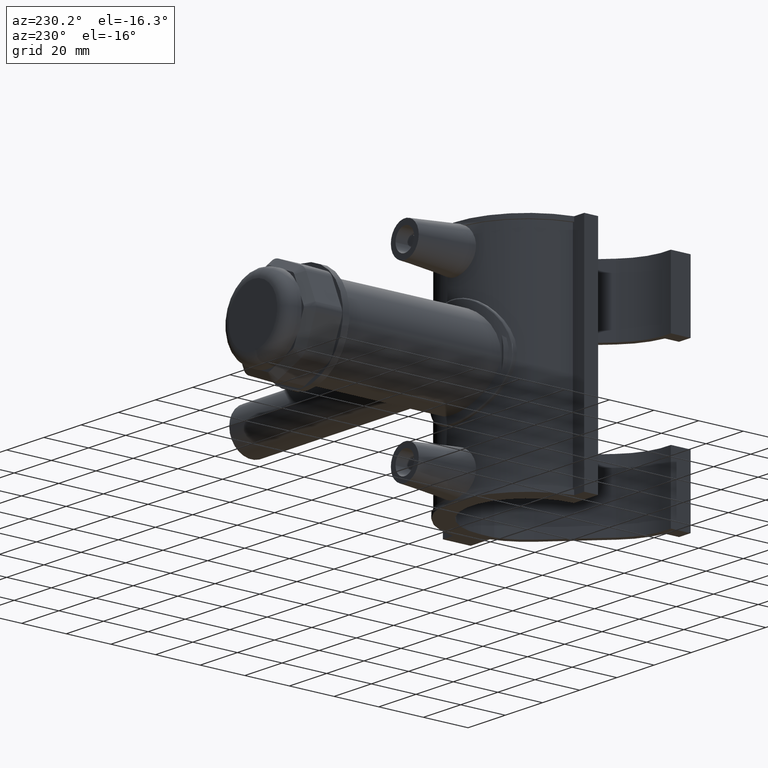
[diagram: clean part render]
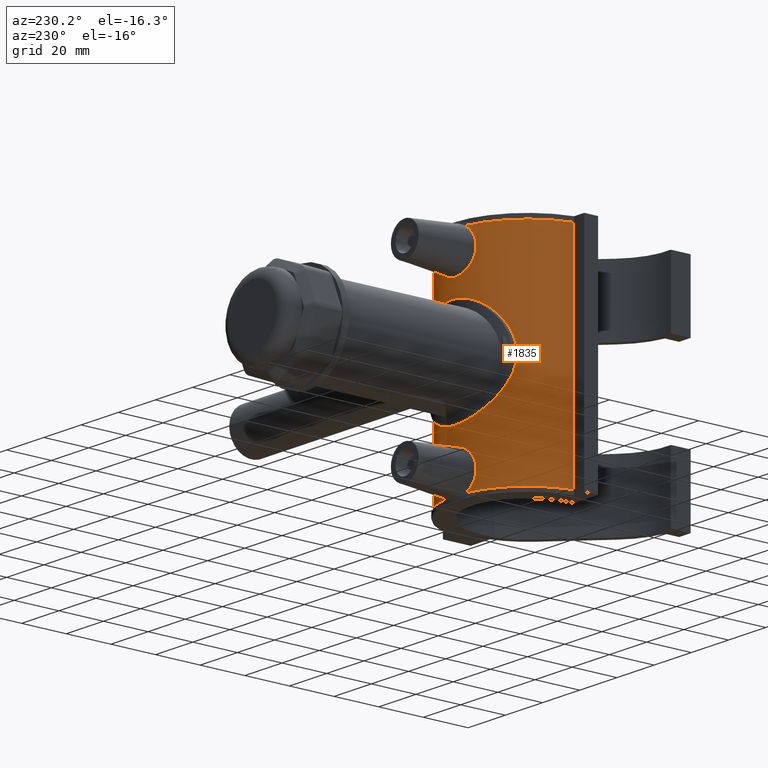
[diagram: same view with one face highlighted and labeled with its STEP entity id]
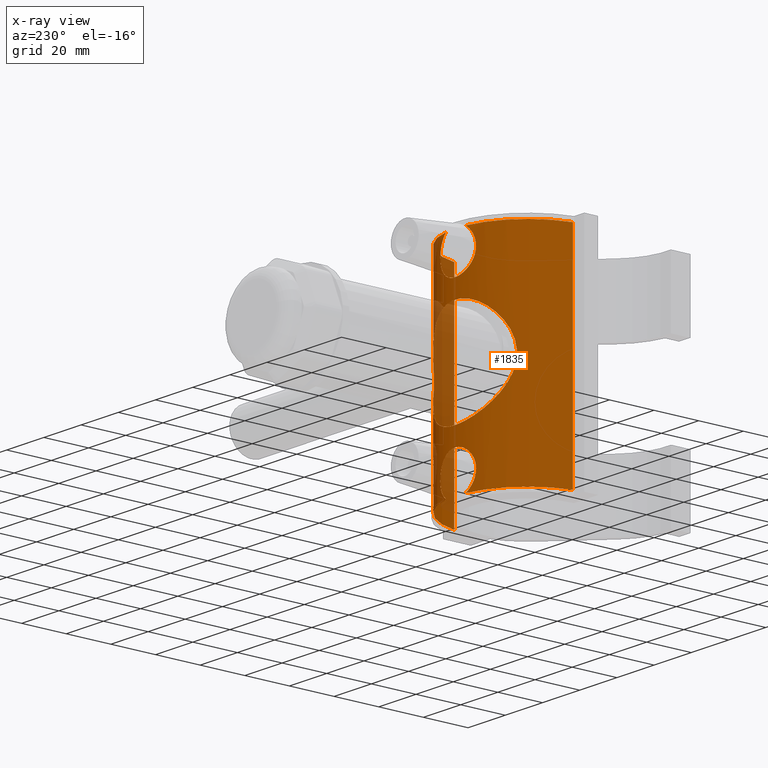
[diagram: x-ray of the same camera — body ghosted, the highlighted face saturated]
A machine part, auxiliary view. The second image highlights one B-rep face of the part: STEP entity #1835.
The next image is the same camera in x-ray: the body ghosted, the highlighted face saturated — about 12% of this face is hidden behind the body in this view.
In plain terms, the highlighted cylindrical surface (partial cylindrical patch) has radius 32.5 mm, axis along (0, 0, 1).
Its self-contained STEP definition (entity closure, byte-faithful):
#100=LINE('',#3353,#244);
#111=LINE('',#3438,#255);
#244=VECTOR('',#2367,96.);
#255=VECTOR('',#2400,96.);
#353=FACE_BOUND('',#627,.T.);
#359=B_SPLINE_CURVE_WITH_KNOTS('',3,(#2726,#2727,#2728,#2729,#2730,#2731,
#2732,#2733,#2734,#2735,#2736,#2737,#2738,#2739),.UNSPECIFIED.,.F.,.F.,
(4,2,2,2,2,2,4),(1.75979192111123,1.79772008593304,2.13795833069933,2.47819657546562,
2.8184348202319,3.15867306499819,3.19660122982),.UNSPECIFIED.);
#369=B_SPLINE_CURVE_WITH_KNOTS('',3,(#3130,#3131,#3132,#3133,#3134,#3135,
#3136,#3137,#3138,#3139,#3140,#3141,#3142,#3143,#3144,#3145,#3146,#3147,
#3148,#3149,#3150,#3151,#3152,#3153,#3154,#3155,#3156,#3157,#3158,#3159,
#3160,#3161,#3162,#3163,#3164,#3165,#3166,#3167,#3168,#3169,#3170,#3171,
#3172,#3173,#3174,#3175,#3176,#3177,#3178,#3179,#3180,#3181,#3182,#3183,
#3184,#3185,#3186,#3187,#3188,#3189,#3190,#3191),.UNSPECIFIED.,.F.,.F.,
(4,2,2,2,2,2,2,2,2,2,2,2,2,2,2,2,2,2,2,2,2,2,2,2,2,2,2,2,2,2,4),(0.642204231778051,
0.892655156686813,1.33898273503022,1.78531031337363,2.22563767284297,2.66596503231231,
3.10629239178164,3.54661975125098,3.98694711072032,4.42727447018966,4.867601829659,
5.30792918912834,5.75425676747175,6.20058434581515,6.64691192415856,7.09323950250197,
7.53956708084537,7.98589465918878,8.43222223753219,8.87854981587559,9.31887717534493,
9.75920453481427,10.1995318942836,10.639859253753,11.0801866132223,11.5205139726916,
11.960841332161,12.4011686916303,12.8474962699737,13.2938238483171,13.5442747732259),
 .UNSPECIFIED.);
#372=B_SPLINE_CURVE_WITH_KNOTS('',3,(#3365,#3366,#3367,#3368,#3369,#3370,
#3371,#3372,#3373,#3374,#3375,#3376,#3377,#3378,#3379,#3380,#3381,#3382,
#3383,#3384,#3385,#3386,#3387,#3388),.UNSPECIFIED.,.F.,.F.,(4,2,2,2,2,2,
2,2,2,2,2,4),(0.,0.362047899468712,0.724095798937425,1.08486680070372,1.44563780247002,
1.80640880423631,2.16717980600261,2.52922770547132,2.89127560494004,3.25332350440875,
3.61537140387746,3.81859572748109),.UNSPECIFIED.);
#373=B_SPLINE_CURVE_WITH_KNOTS('',3,(#3389,#3390,#3391,#3392,#3393,#3394,
#3395,#3396),.UNSPECIFIED.,.F.,.F.,(4,2,2,4),(4.85523108733587,5.05845541094265,
5.42050331041136,5.78255120988007),.UNSPECIFIED.);
#375=B_SPLINE_CURVE_WITH_KNOTS('',3,(#3441,#3442,#3443,#3444,#3445,#3446,
#3447,#3448),.UNSPECIFIED.,.F.,.F.,(4,2,2,4),(2.89127560494004,3.25332350440875,
3.61537140387746,3.81859572748109),.UNSPECIFIED.);
#376=B_SPLINE_CURVE_WITH_KNOTS('',3,(#3449,#3450,#3451,#3452,#3453,#3454,
#3455,#3456,#3457,#3458,#3459,#3460,#3461,#3462,#3463,#3464,#3465,#3466,
#3467,#3468,#3469,#3470,#3471,#3472,#3473),.UNSPECIFIED.,.F.,.F.,(4,2,2,
3,2,2,2,2,2,2,2,4),(4.85523108733587,5.05845541094265,5.42050331041136,
5.78255120988007,6.14459910934878,6.5066470088175,6.86741801058379,7.22818901235009,
7.58896001411639,7.94973101588268,8.3117789153514,8.67382681482011),
 .UNSPECIFIED.);
#401=CYLINDRICAL_SURFACE('',#2020,32.5);
#492=FACE_OUTER_BOUND('',#626,.T.);
#626=EDGE_LOOP('',(#1532,#1533,#1534,#1535,#1536,#1537,#1538,#1539,#1540,
#1541));
#627=EDGE_LOOP('',(#1542,#1543));
#698=CIRCLE('',#1975,32.5);
#699=CIRCLE('',#1977,32.5);
#704=CIRCLE('',#1986,32.5);
#705=CIRCLE('',#1988,32.5);
#742=VERTEX_POINT('',#2718);
#743=VERTEX_POINT('',#2725);
#822=VERTEX_POINT('',#3315);
#824=VERTEX_POINT('',#3321);
#825=VERTEX_POINT('',#3325);
#827=VERTEX_POINT('',#3330);
#831=VERTEX_POINT('',#3352);
#836=VERTEX_POINT('',#3364);
#839=VERTEX_POINT('',#3401);
#840=VERTEX_POINT('',#3408);
#842=VERTEX_POINT('',#3413);
#847=VERTEX_POINT('',#3440);
#916=EDGE_CURVE('',#743,#742,#359,.T.);
#1039=EDGE_CURVE('',#742,#743,#369,.T.);
#1044=EDGE_CURVE('',#822,#824,#698,.T.);
#1046=EDGE_CURVE('',#827,#825,#699,.T.);
#1053=EDGE_CURVE('',#831,#827,#100,.T.);
#1059=EDGE_CURVE('',#836,#822,#372,.T.);
#1060=EDGE_CURVE('',#825,#836,#373,.T.);
#1064=EDGE_CURVE('',#839,#831,#704,.T.);
#1066=EDGE_CURVE('',#842,#840,#705,.T.);
#1075=EDGE_CURVE('',#842,#824,#111,.T.);
#1076=EDGE_CURVE('',#847,#839,#375,.T.);
#1077=EDGE_CURVE('',#840,#847,#376,.T.);
#1532=ORIENTED_EDGE('',*,*,#1044,.T.);
#1533=ORIENTED_EDGE('',*,*,#1075,.F.);
#1534=ORIENTED_EDGE('',*,*,#1066,.T.);
#1535=ORIENTED_EDGE('',*,*,#1077,.T.);
#1536=ORIENTED_EDGE('',*,*,#1076,.T.);
#1537=ORIENTED_EDGE('',*,*,#1064,.T.);
#1538=ORIENTED_EDGE('',*,*,#1053,.T.);
#1539=ORIENTED_EDGE('',*,*,#1046,.T.);
#1540=ORIENTED_EDGE('',*,*,#1060,.T.);
#1541=ORIENTED_EDGE('',*,*,#1059,.T.);
#1542=ORIENTED_EDGE('',*,*,#916,.T.);
#1543=ORIENTED_EDGE('',*,*,#1039,.T.);
#1835=ADVANCED_FACE('',(#492,#353),#401,.T.);
#1975=AXIS2_PLACEMENT_3D('',#3323,#2350,#2351);
#1977=AXIS2_PLACEMENT_3D('',#3331,#2354,#2355);
#1986=AXIS2_PLACEMENT_3D('',#3406,#2381,#2382);
#1988=AXIS2_PLACEMENT_3D('',#3414,#2385,#2386);
#2020=AXIS2_PLACEMENT_3D('',#3529,#2467,#2468);
#2350=DIRECTION('center_axis',(0.,0.,1.));
#2351=DIRECTION('ref_axis',(1.,0.,0.));
#2354=DIRECTION('center_axis',(0.,0.,1.));
#2355=DIRECTION('ref_axis',(1.,0.,0.));
#2367=DIRECTION('',(0.,0.,-1.));
#2381=DIRECTION('center_axis',(0.,0.,-1.));
#2382=DIRECTION('ref_axis',(1.,0.,0.));
#2385=DIRECTION('center_axis',(0.,0.,-1.));
#2386=DIRECTION('ref_axis',(1.,0.,0.));
#2400=DIRECTION('',(0.,0.,-1.));
#2467=DIRECTION('center_axis',(0.,0.,1.));
#2468=DIRECTION('ref_axis',(1.,0.,0.));
#2718=CARTESIAN_POINT('',(21.5740129761844,24.3066238794407,6.38842422159642));
#2725=CARTESIAN_POINT('',(21.5740129761844,24.3066238794407,-6.38842422159642));
#2726=CARTESIAN_POINT('Ctrl Pts',(21.5740129666221,24.306623881486,-6.38842421095202));
#2727=CARTESIAN_POINT('Ctrl Pts',(21.6475026356788,24.2413961032115,-6.30987247188935));
#2728=CARTESIAN_POINT('Ctrl Pts',(21.7198167566256,24.1766156654269,-6.22941294073846));
#2729=CARTESIAN_POINT('Ctrl Pts',(22.4287680825163,23.5359191850374,-5.40728510045754));
#2730=CARTESIAN_POINT('Ctrl Pts',(22.9908436542987,22.9773360077883,-4.45879956090321));
#2731=CARTESIAN_POINT('Ctrl Pts',(23.7354424046721,22.2073316477124,-2.32229686715848));
#2732=CARTESIAN_POINT('Ctrl Pts',(23.9217474278114,22.,-1.13412748255429));
#2733=CARTESIAN_POINT('Ctrl Pts',(23.9217474278114,22.,1.13412748255429));
#2734=CARTESIAN_POINT('Ctrl Pts',(23.7354424046721,22.2073316477124,2.32229686715848));
#2735=CARTESIAN_POINT('Ctrl Pts',(22.9908436542987,22.9773360077883,4.45879956090322));
#2736=CARTESIAN_POINT('Ctrl Pts',(22.4287680825163,23.5359191850374,5.40728510045754));
#2737=CARTESIAN_POINT('Ctrl Pts',(21.7198167566256,24.1766156654269,6.22941294073846));
#2738=CARTESIAN_POINT('Ctrl Pts',(21.6475026356788,24.2413961032115,6.30987247188935));
#2739=CARTESIAN_POINT('Ctrl Pts',(21.5740129666221,24.306623881486,6.38842421095202));
#3130=CARTESIAN_POINT('Ctrl Pts',(21.5740129761844,24.3066238729987,6.3884242269458));
#3131=CARTESIAN_POINT('Ctrl Pts',(21.3349312676024,24.5188274233669,7.19581454732575));
#3132=CARTESIAN_POINT('Ctrl Pts',(21.0510824744804,24.7644883937493,7.98741953372431));
#3133=CARTESIAN_POINT('Ctrl Pts',(20.147164322922,25.512874705654,10.1269630174168));
#3134=CARTESIAN_POINT('Ctrl Pts',(19.4359067364272,26.0669095433927,11.4281429797974));
#3135=CARTESIAN_POINT('Ctrl Pts',(17.8064018001484,27.2060709895802,13.8307258560493));
#3136=CARTESIAN_POINT('Ctrl Pts',(16.8876812187161,27.7905307185321,14.9321239346785));
#3137=CARTESIAN_POINT('Ctrl Pts',(14.945268732686,28.881009975497,16.8745364207086));
#3138=CARTESIAN_POINT('Ctrl Pts',(13.851062690891,29.4295707864864,17.7907025978032));
#3139=CARTESIAN_POINT('Ctrl Pts',(11.4478930364804,30.4449884110935,19.4243862655128));
#3140=CARTESIAN_POINT('Ctrl Pts',(10.1387631948868,30.9113074756575,20.1419934198875));
#3141=CARTESIAN_POINT('Ctrl Pts',(7.37882860695121,31.6836921446332,21.308386282405));
#3142=CARTESIAN_POINT('Ctrl Pts',(5.92503264948649,31.9901452901852,21.7581366019244));
#3143=CARTESIAN_POINT('Ctrl Pts',(2.96953831224904,32.3984143101556,22.3540681424165));
#3144=CARTESIAN_POINT('Ctrl Pts',(1.4677578648978,32.5,22.5));
#3145=CARTESIAN_POINT('Ctrl Pts',(-1.4677578648978,32.5,22.5));
#3146=CARTESIAN_POINT('Ctrl Pts',(-2.96953831224903,32.3984143101556,22.3540681424165));
#3147=CARTESIAN_POINT('Ctrl Pts',(-5.92503264948648,31.9901452901852,21.7581366019244));
#3148=CARTESIAN_POINT('Ctrl Pts',(-7.37882860695121,31.6836921446332,21.308386282405));
#3149=CARTESIAN_POINT('Ctrl Pts',(-10.1387631948868,30.9113074756575,20.1419934198875));
#3150=CARTESIAN_POINT('Ctrl Pts',(-11.4478930364804,30.4449884110935,19.4243862655128));
#3151=CARTESIAN_POINT('Ctrl Pts',(-13.851062690891,29.4295707864864,17.7907025978032));
#3152=CARTESIAN_POINT('Ctrl Pts',(-14.945268732686,28.881009975497,16.8745364207086));
#3153=CARTESIAN_POINT('Ctrl Pts',(-16.8876812187161,27.7905307185321,14.9321239346785));
#3154=CARTESIAN_POINT('Ctrl Pts',(-17.8064018001484,27.2060709895802,13.8307258560493));
#3155=CARTESIAN_POINT('Ctrl Pts',(-19.4359067364272,26.0669095433927,11.4281429797974));
#3156=CARTESIAN_POINT('Ctrl Pts',(-20.147164322922,25.512874705654,10.1269630174168));
#3157=CARTESIAN_POINT('Ctrl Pts',(-21.3051897147005,24.5541038804958,7.38595634921514));
#3158=CARTESIAN_POINT('Ctrl Pts',(-21.7529613714861,24.1500335136266,5.94322521860863));
#3159=CARTESIAN_POINT('Ctrl Pts',(-22.3505515771082,23.5980569779647,2.99434411500661));
#3160=CARTESIAN_POINT('Ctrl Pts',(-22.5,23.4520787991172,1.48775859447802));
#3161=CARTESIAN_POINT('Ctrl Pts',(-22.5,23.4520787991172,-1.48775859447802));
#3162=CARTESIAN_POINT('Ctrl Pts',(-22.3505515771082,23.5980569779647,-2.99434411500662));
#3163=CARTESIAN_POINT('Ctrl Pts',(-21.7529613714861,24.1500335136266,-5.94322521860863));
#3164=CARTESIAN_POINT('Ctrl Pts',(-21.3051897147005,24.5541038804958,-7.38595634921514));
#3165=CARTESIAN_POINT('Ctrl Pts',(-20.147164322922,25.512874705654,-10.1269630174168));
#3166=CARTESIAN_POINT('Ctrl Pts',(-19.4359067364272,26.0669095433927,-11.4281429797974));
#3167=CARTESIAN_POINT('Ctrl Pts',(-17.8064018001484,27.2060709895802,-13.8307258560493));
#3168=CARTESIAN_POINT('Ctrl Pts',(-16.8876812187161,27.7905307185321,-14.9321239346785));
#3169=CARTESIAN_POINT('Ctrl Pts',(-14.945268732686,28.8810099754969,-16.8745364207086));
#3170=CARTESIAN_POINT('Ctrl Pts',(-13.851062690891,29.4295707864864,-17.7907025978032));
#3171=CARTESIAN_POINT('Ctrl Pts',(-11.4478930364804,30.4449884110935,-19.4243862655128));
#3172=CARTESIAN_POINT('Ctrl Pts',(-10.1387631948868,30.9113074756575,-20.1419934198875));
#3173=CARTESIAN_POINT('Ctrl Pts',(-7.37882860695121,31.6836921446332,-21.308386282405));
#3174=CARTESIAN_POINT('Ctrl Pts',(-5.92503264948649,31.9901452901852,-21.7581366019244));
#3175=CARTESIAN_POINT('Ctrl Pts',(-2.96953831224904,32.3984143101556,-22.3540681424165));
#3176=CARTESIAN_POINT('Ctrl Pts',(-1.4677578648978,32.5,-22.5));
#3177=CARTESIAN_POINT('Ctrl Pts',(1.46775786489779,32.5,-22.5));
#3178=CARTESIAN_POINT('Ctrl Pts',(2.96953831224903,32.3984143101556,-22.3540681424165));
#3179=CARTESIAN_POINT('Ctrl Pts',(5.92503264948648,31.9901452901852,-21.7581366019244));
#3180=CARTESIAN_POINT('Ctrl Pts',(7.37882860695121,31.6836921446332,-21.308386282405));
#3181=CARTESIAN_POINT('Ctrl Pts',(10.1387631948868,30.9113074756575,-20.1419934198875));
#3182=CARTESIAN_POINT('Ctrl Pts',(11.4478930364804,30.4449884110935,-19.4243862655128));
#3183=CARTESIAN_POINT('Ctrl Pts',(13.851062690891,29.4295707864864,-17.7907025978032));
#3184=CARTESIAN_POINT('Ctrl Pts',(14.945268732686,28.881009975497,-16.8745364207086));
#3185=CARTESIAN_POINT('Ctrl Pts',(16.8876812187161,27.7905307185321,-14.9321239346785));
#3186=CARTESIAN_POINT('Ctrl Pts',(17.8064018001484,27.2060709895802,-13.8307258560493));
#3187=CARTESIAN_POINT('Ctrl Pts',(19.4359067364272,26.0669095433927,-11.4281429797974));
#3188=CARTESIAN_POINT('Ctrl Pts',(20.147164322922,25.512874705654,-10.1269630174168));
#3189=CARTESIAN_POINT('Ctrl Pts',(21.0510824744804,24.7644883937493,-7.98741953372431));
#3190=CARTESIAN_POINT('Ctrl Pts',(21.3349312676024,24.5188274233669,-7.19581454732574));
#3191=CARTESIAN_POINT('Ctrl Pts',(21.5740129761844,24.3066238729987,-6.3884242269458));
#3315=CARTESIAN_POINT('',(-5.13117896250066,32.0923823119255,-48.));
#3321=CARTESIAN_POINT('',(-31.8933770554327,6.25,-48.));
#3323=CARTESIAN_POINT('Origin',(0.,0.,-48.));
#3325=CARTESIAN_POINT('',(5.13117896250066,32.0923823119255,-48.));
#3330=CARTESIAN_POINT('',(31.8933770554327,6.25,-48.));
#3331=CARTESIAN_POINT('Origin',(0.,0.,-48.));
#3352=CARTESIAN_POINT('',(31.8933770554327,6.25,48.));
#3353=CARTESIAN_POINT('',(31.8933770554327,6.25,0.));
#3364=CARTESIAN_POINT('',(9.59524244594183,31.0512692559193,-40.));
#3365=CARTESIAN_POINT('Ctrl Pts',(9.59524244594183,31.0512692559193,-40.));
#3366=CARTESIAN_POINT('Ctrl Pts',(9.59524244594183,31.0512692559193,-38.7931736684376));
#3367=CARTESIAN_POINT('Ctrl Pts',(9.3470231898562,31.1311666751305,-37.5134816777897));
#3368=CARTESIAN_POINT('Ctrl Pts',(8.35380569471185,31.412263489831,-35.1737633631997));
#3369=CARTESIAN_POINT('Ctrl Pts',(7.60928976109968,31.6086786532308,-34.1129600502947));
#3370=CARTESIAN_POINT('Ctrl Pts',(5.90699332981886,31.9704853933175,-32.446684726768));
#3371=CARTESIAN_POINT('Ctrl Pts',(4.83429941664471,32.1602272677186,-31.7260732041943));
#3372=CARTESIAN_POINT('Ctrl Pts',(2.48234605122766,32.4266653583976,-30.76831513355));
#3373=CARTESIAN_POINT('Ctrl Pts',(1.20257000588766,32.5,-30.5315050706667));
#3374=CARTESIAN_POINT('Ctrl Pts',(-1.20257000588765,32.5,-30.5315050706667));
#3375=CARTESIAN_POINT('Ctrl Pts',(-2.48234605122766,32.4266653583976,-30.76831513355));
#3376=CARTESIAN_POINT('Ctrl Pts',(-4.83429941664471,32.1602272677186,-31.7260732041943));
#3377=CARTESIAN_POINT('Ctrl Pts',(-5.90699332981886,31.9704853933175,-32.446684726768));
#3378=CARTESIAN_POINT('Ctrl Pts',(-7.60928976109968,31.6086786532308,-34.1129600502947));
#3379=CARTESIAN_POINT('Ctrl Pts',(-8.35380569471185,31.412263489831,-35.1737633631997));
#3380=CARTESIAN_POINT('Ctrl Pts',(-9.3470231898562,31.1311666751305,-37.5134816777897));
#3381=CARTESIAN_POINT('Ctrl Pts',(-9.59524244594183,31.0512692559193,-38.7931736684376));
#3382=CARTESIAN_POINT('Ctrl Pts',(-9.59524244594183,31.0512692559193,-41.2068263315624));
#3383=CARTESIAN_POINT('Ctrl Pts',(-9.3470231898562,31.1311666751305,-42.4865183222104));
#3384=CARTESIAN_POINT('Ctrl Pts',(-8.35380569471185,31.412263489831,-44.8262366368003));
#3385=CARTESIAN_POINT('Ctrl Pts',(-7.60928976109968,31.6086786532308,-45.8870399497053));
#3386=CARTESIAN_POINT('Ctrl Pts',(-6.27802838097515,31.8916254604351,-47.1901314360668));
#3387=CARTESIAN_POINT('Ctrl Pts',(-5.73018665567346,31.9966083165979,-47.6257526220462));
#3388=CARTESIAN_POINT('Ctrl Pts',(-5.13117896251543,32.0923823119232,-47.9999999999908));
#3389=CARTESIAN_POINT('Ctrl Pts',(5.13117896248757,32.0923823119276,-48.0000000000082));
#3390=CARTESIAN_POINT('Ctrl Pts',(5.73018665565645,31.9966083166012,-47.6257526220596));
#3391=CARTESIAN_POINT('Ctrl Pts',(6.27802838096772,31.8916254604366,-47.1901314360741));
#3392=CARTESIAN_POINT('Ctrl Pts',(7.60928976109968,31.6086786532308,-45.8870399497053));
#3393=CARTESIAN_POINT('Ctrl Pts',(8.35380569471185,31.412263489831,-44.8262366368003));
#3394=CARTESIAN_POINT('Ctrl Pts',(9.3470231898562,31.1311666751305,-42.4865183222104));
#3395=CARTESIAN_POINT('Ctrl Pts',(9.59524244594183,31.0512692559193,-41.2068263315624));
#3396=CARTESIAN_POINT('Ctrl Pts',(9.59524244594183,31.0512692559193,-40.));
#3401=CARTESIAN_POINT('',(5.13117896250066,32.0923823119255,48.));
#3406=CARTESIAN_POINT('Origin',(0.,0.,48.));
#3408=CARTESIAN_POINT('',(-5.13117896250066,32.0923823119255,48.));
#3413=CARTESIAN_POINT('',(-31.8933770554327,6.25,48.));
#3414=CARTESIAN_POINT('Origin',(0.,0.,48.));
#3438=CARTESIAN_POINT('',(-31.8933770554327,6.25,0.));
#3440=CARTESIAN_POINT('',(9.59524244594183,31.0512692559193,40.));
#3441=CARTESIAN_POINT('Ctrl Pts',(9.59524244594183,31.0512692559193,40.));
#3442=CARTESIAN_POINT('Ctrl Pts',(9.59524244594183,31.0512692559193,41.2068263315624));
#3443=CARTESIAN_POINT('Ctrl Pts',(9.3470231898562,31.1311666751305,42.4865183222104));
#3444=CARTESIAN_POINT('Ctrl Pts',(8.35380569471185,31.412263489831,44.8262366368003));
#3445=CARTESIAN_POINT('Ctrl Pts',(7.60928976109968,31.6086786532308,45.8870399497053));
#3446=CARTESIAN_POINT('Ctrl Pts',(6.27802838097515,31.8916254604351,47.1901314360668));
#3447=CARTESIAN_POINT('Ctrl Pts',(5.73018665567347,31.9966083165979,47.6257526220462));
#3448=CARTESIAN_POINT('Ctrl Pts',(5.13117896251544,32.0923823119232,47.9999999999908));
#3449=CARTESIAN_POINT('Ctrl Pts',(-5.13117896248756,32.0923823119276,48.0000000000082));
#3450=CARTESIAN_POINT('Ctrl Pts',(-5.73018665565644,31.9966083166012,47.6257526220596));
#3451=CARTESIAN_POINT('Ctrl Pts',(-6.27802838096772,31.8916254604366,47.1901314360741));
#3452=CARTESIAN_POINT('Ctrl Pts',(-7.60928976109968,31.6086786532308,45.8870399497053));
#3453=CARTESIAN_POINT('Ctrl Pts',(-8.35380569471185,31.412263489831,44.8262366368003));
#3454=CARTESIAN_POINT('Ctrl Pts',(-9.3470231898562,31.1311666751305,42.4865183222104));
#3455=CARTESIAN_POINT('Ctrl Pts',(-9.59524244594183,31.0512692559193,41.2068263315624));
#3456=CARTESIAN_POINT('Ctrl Pts',(-9.59524244594183,31.0512692559193,40.));
#3457=CARTESIAN_POINT('Ctrl Pts',(-9.59524244594183,31.0512692559193,38.7931736684376));
#3458=CARTESIAN_POINT('Ctrl Pts',(-9.3470231898562,31.1311666751305,37.5134816777897));
#3459=CARTESIAN_POINT('Ctrl Pts',(-8.35380569471185,31.412263489831,35.1737633631997));
#3460=CARTESIAN_POINT('Ctrl Pts',(-7.60928976109968,31.6086786532308,34.1129600502947));
#3461=CARTESIAN_POINT('Ctrl Pts',(-5.90699332981886,31.9704853933175,32.446684726768));
#3462=CARTESIAN_POINT('Ctrl Pts',(-4.83429941664471,32.1602272677186,31.7260732041943));
#3463=CARTESIAN_POINT('Ctrl Pts',(-2.48234605122766,32.4266653583976,30.76831513355));
#3464=CARTESIAN_POINT('Ctrl Pts',(-1.20257000588765,32.5,30.5315050706667));
#3465=CARTESIAN_POINT('Ctrl Pts',(1.20257000588766,32.5,30.5315050706667));
#3466=CARTESIAN_POINT('Ctrl Pts',(2.48234605122766,32.4266653583976,30.76831513355));
#3467=CARTESIAN_POINT('Ctrl Pts',(4.83429941664471,32.1602272677186,31.7260732041943));
#3468=CARTESIAN_POINT('Ctrl Pts',(5.90699332981886,31.9704853933175,32.446684726768));
#3469=CARTESIAN_POINT('Ctrl Pts',(7.60928976109968,31.6086786532308,34.1129600502947));
#3470=CARTESIAN_POINT('Ctrl Pts',(8.35380569471185,31.412263489831,35.1737633631997));
#3471=CARTESIAN_POINT('Ctrl Pts',(9.3470231898562,31.1311666751305,37.5134816777897));
#3472=CARTESIAN_POINT('Ctrl Pts',(9.59524244594183,31.0512692559193,38.7931736684376));
#3473=CARTESIAN_POINT('Ctrl Pts',(9.59524244594183,31.0512692559193,40.));
#3529=CARTESIAN_POINT('Origin',(0.,0.,0.));